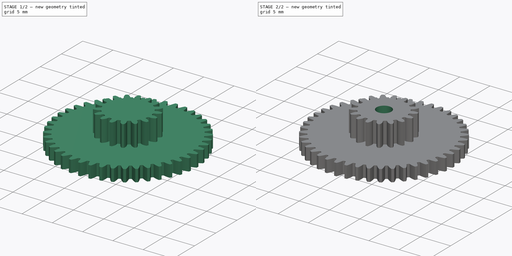
[diagram: build sequence overview — one tinted view per stage of 2, left to right]
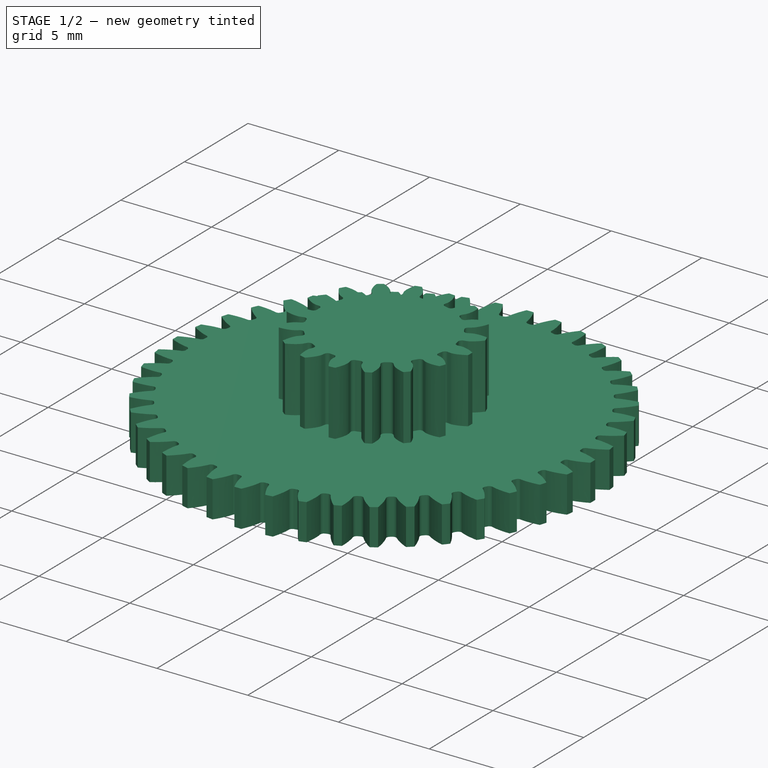
[diagram: stage 1 of 2 — iso view after this stage's code; geometry added in this stage tinted green]
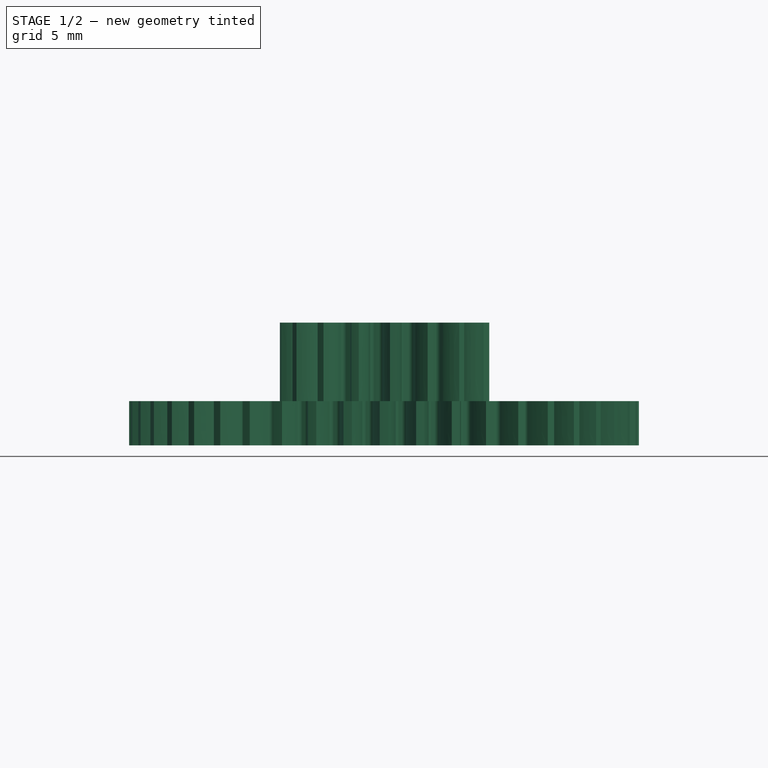
[diagram: stage 1 of 2 — front view after this stage's code; geometry added in this stage tinted green]
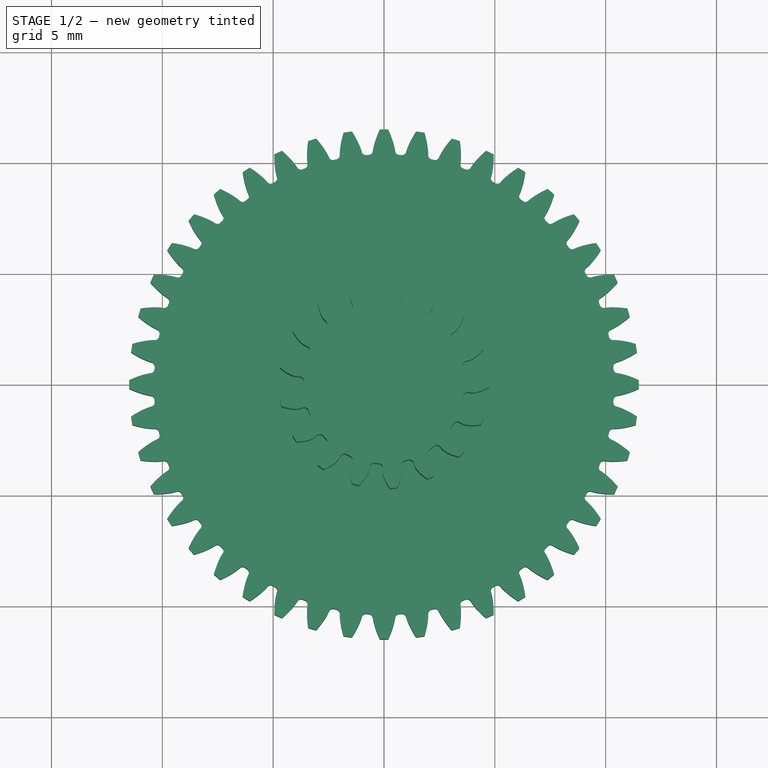
[diagram: stage 1 of 2 — top view after this stage's code; geometry added in this stage tinted green]
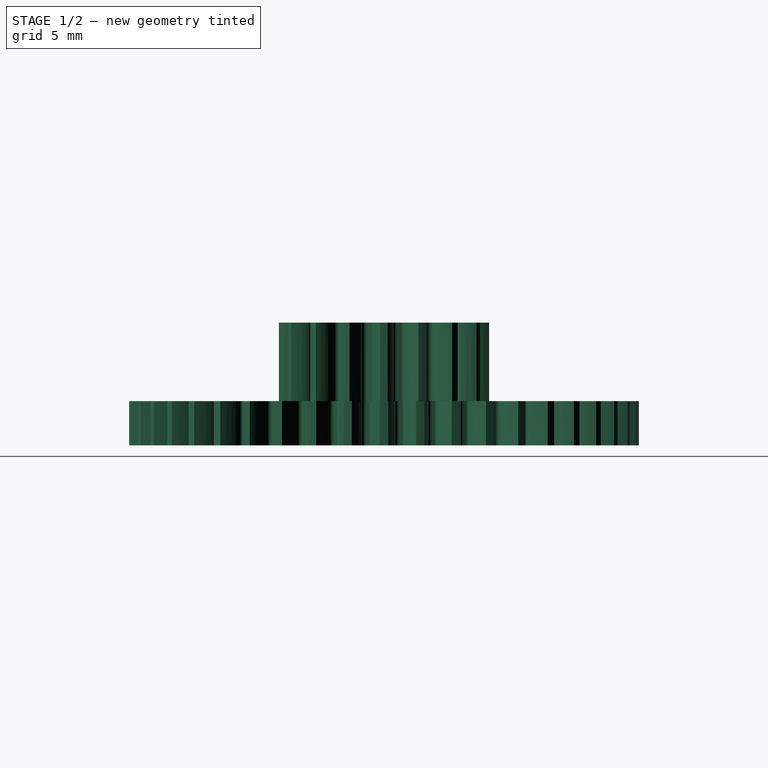
[diagram: stage 1 of 2 — right view after this stage's code; geometry added in this stage tinted green]
FCSTD DOCUMENT  (FreeCAD 0.16R6225 (Git))
Label: Gears
License: All rights reserved
LicenseURL: http://es.wikipedia.org/wiki/Todos_los_derechos_reservados
objects: Part::Part2DObjectPython×2, PartDesign::Pad×2, Part::MultiFuse×1, Sketcher::SketchObject×1, PartDesign::Pocket×1, Part::Feature×1
note: 11 computed .brp shape members not serialized (recipe doc carries the construction recipe); baked Part::Feature solids carry a one-line shape summary decoded from their .brp

FEATURE [Part::Part2DObjectPython] InvoluteGear  label="44teeth-Gear-Sketch"  # Draft 2D object (typed FeaturePython)
  ExternalGear = true
  HighPrecision = true
  Modules = 0.5
  NumberOfTeeth = 44
  PressureAngle = 20
FEATURE [PartDesign::Pad] Pad  label="44teeth-Gear-2mm"
  Length = 2
  Length2 = 100
  Sketch = -> InvoluteGear
  Type = 0
FEATURE [Part::Part2DObjectPython] InvoluteGear001  label="17teeth-Gear-Sketch"  # Draft 2D object (typed FeaturePython)
  ExternalGear = true
  HighPrecision = true
  Modules = 0.5
  NumberOfTeeth = 17
  Placement = pos=(0,0,2) rot=(0,0,1;0rad)
  PressureAngle = 20
FEATURE [PartDesign::Pad] Pad001  label="17teeth-Gear-3,54mm"
  Length = 3.54
  Length2 = 100
  Placement = pos=(0,0,2) rot=(0,0,1;0rad)
  Sketch = -> InvoluteGear001
  Type = 0
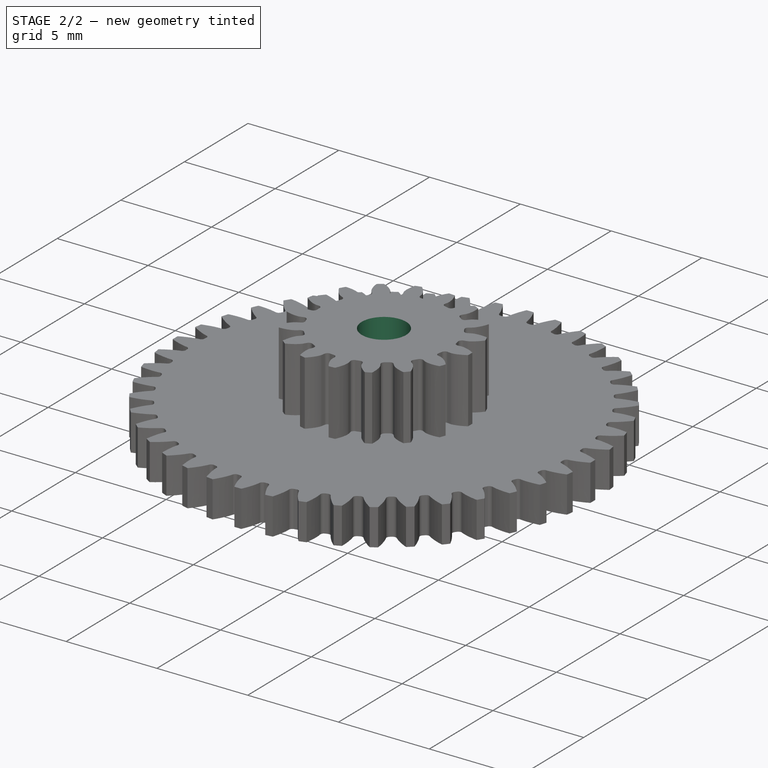
[diagram: stage 2 of 2 — iso view after this stage's code; geometry added in this stage tinted green]
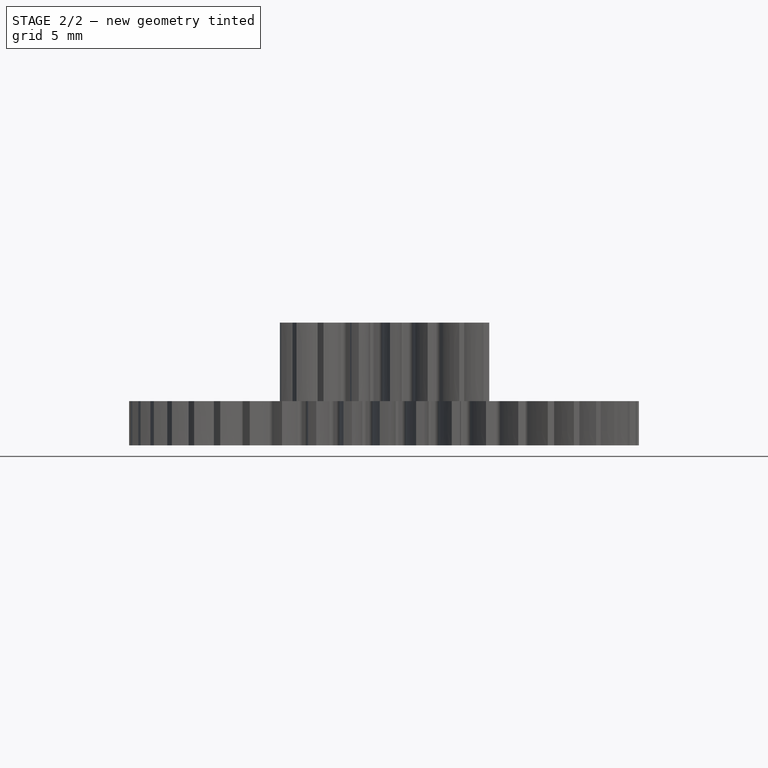
[diagram: stage 2 of 2 — front view after this stage's code; geometry added in this stage tinted green]
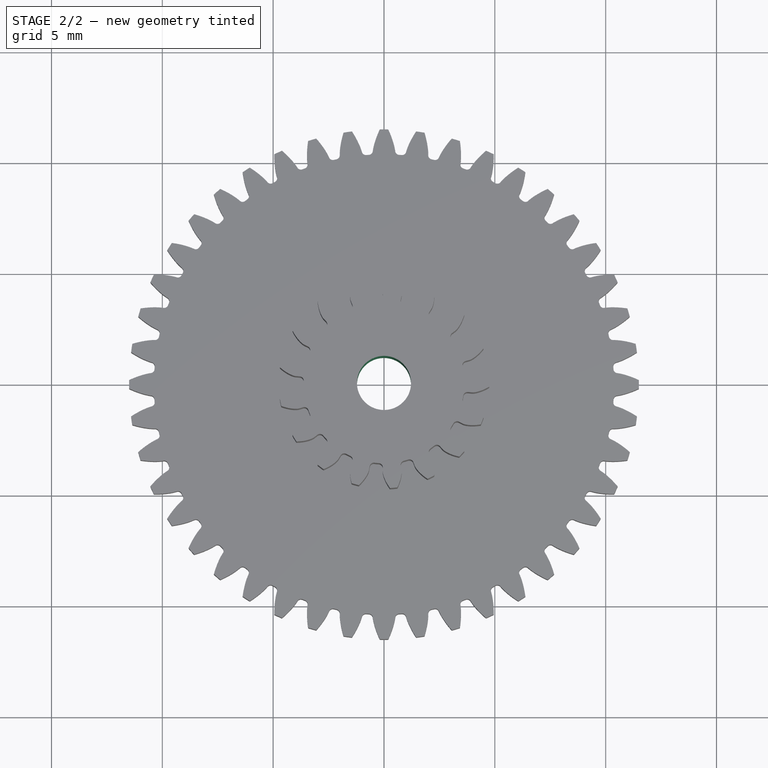
[diagram: stage 2 of 2 — top view after this stage's code; geometry added in this stage tinted green]
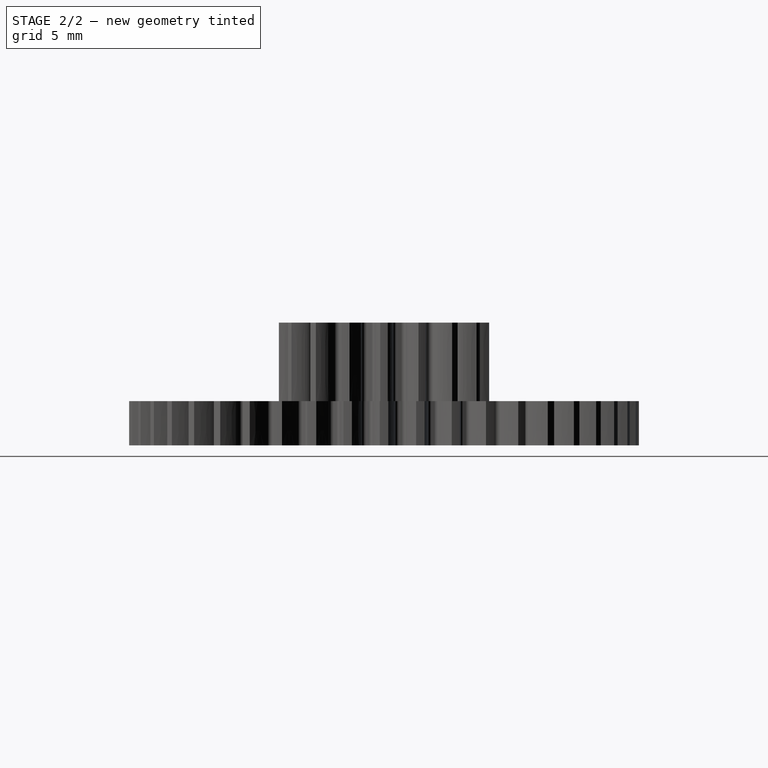
[diagram: stage 2 of 2 — right view after this stage's code; geometry added in this stage tinted green]
FEATURE [Part::MultiFuse] Fusion  label="GearsBoolean"
  Shapes = -> [Pad,Pad001]
FEATURE [Sketcher::SketchObject] Sketch  label="Shaft-Sketch"
  Placement = pos=(0,0,5.54) rot=(0,0,1;0rad)
  Support = -> Fusion [Face525]
  sketch-geometry (1):
    g0: Circle CenterX=0 CenterY=0 CenterZ=0 NormalX=0 NormalY=0 NormalZ=1 Radius=1.22
  constraints (2):
    c: Coincident(g0,g-1)
    c: Radius(g0) = 1.22
FEATURE [PartDesign::Pocket] Pocket  label="Shaft-Pocket"
  Length = 5
  Sketch = -> Sketch
  Type = 1
FEATURE [Part::Feature] Pocket001  label="DualGearsWithShaft"
  shape: bbox 23 x 23 x 5.54 mm, 526 faces (baked)
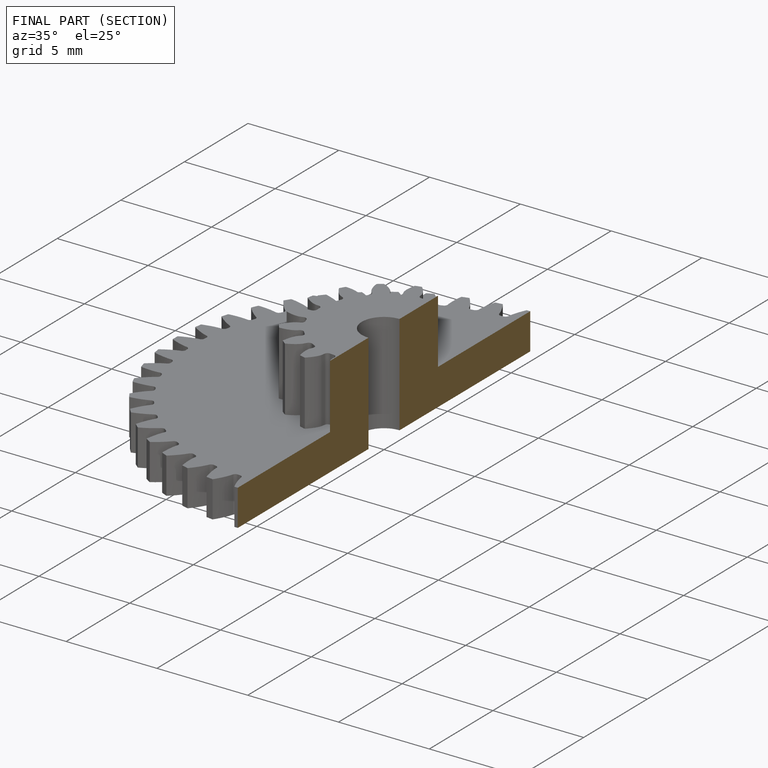
[diagram: finished part — half-section view (interior)]
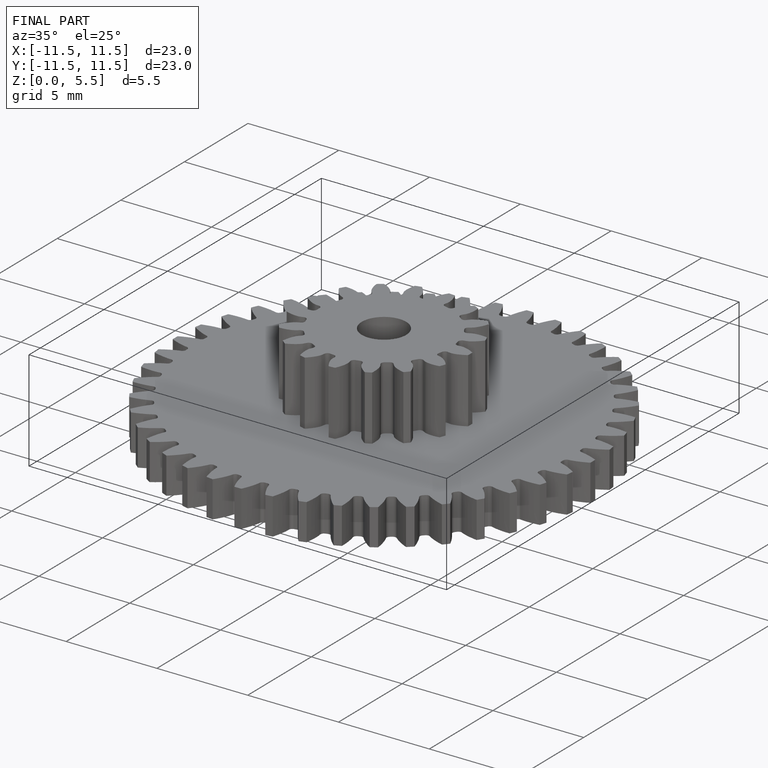
[diagram: finished part — iso view with bounding-box wireframe]
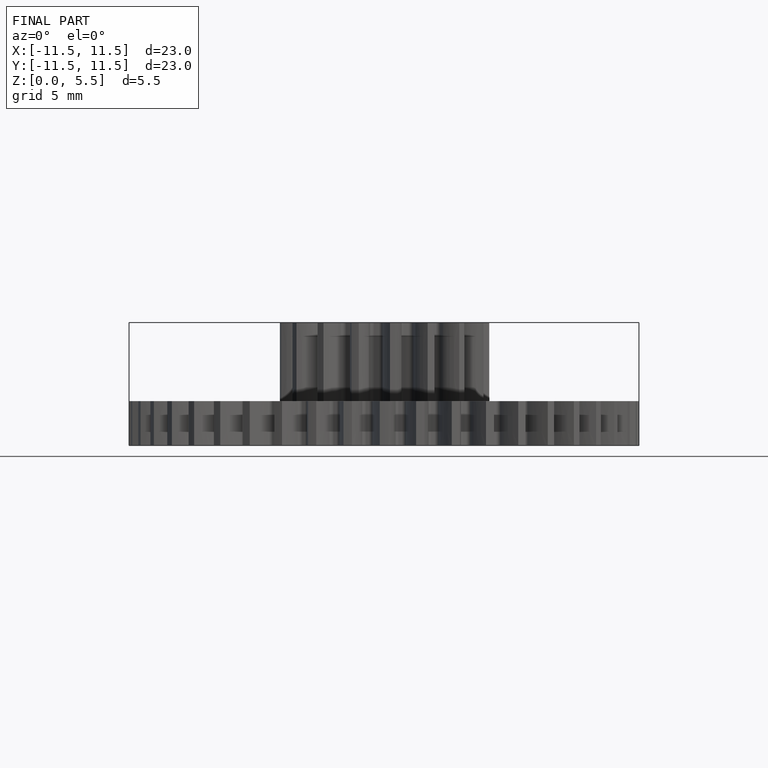
[diagram: finished part — front view with bounding-box wireframe]
